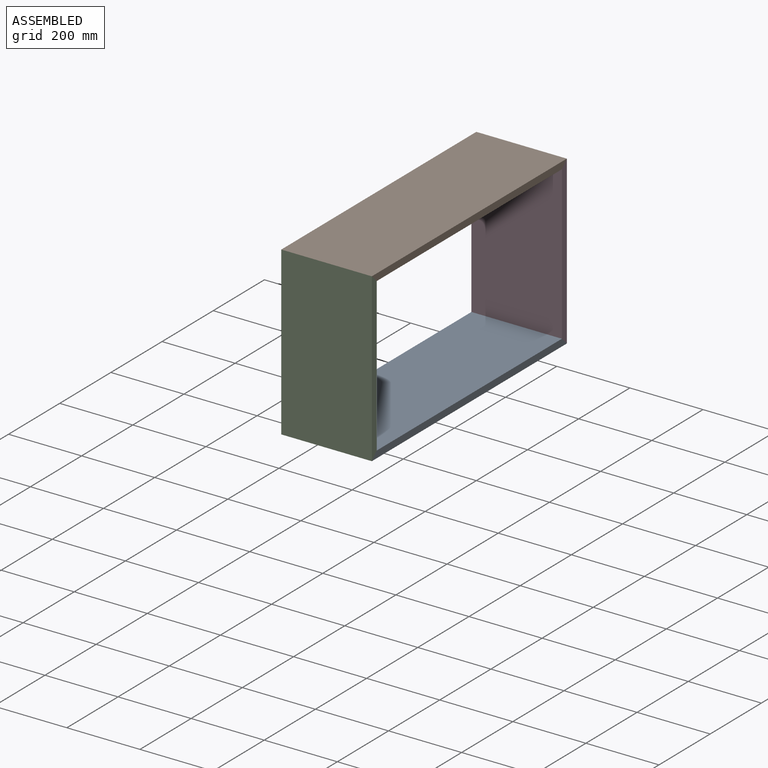
[diagram: assembled view]
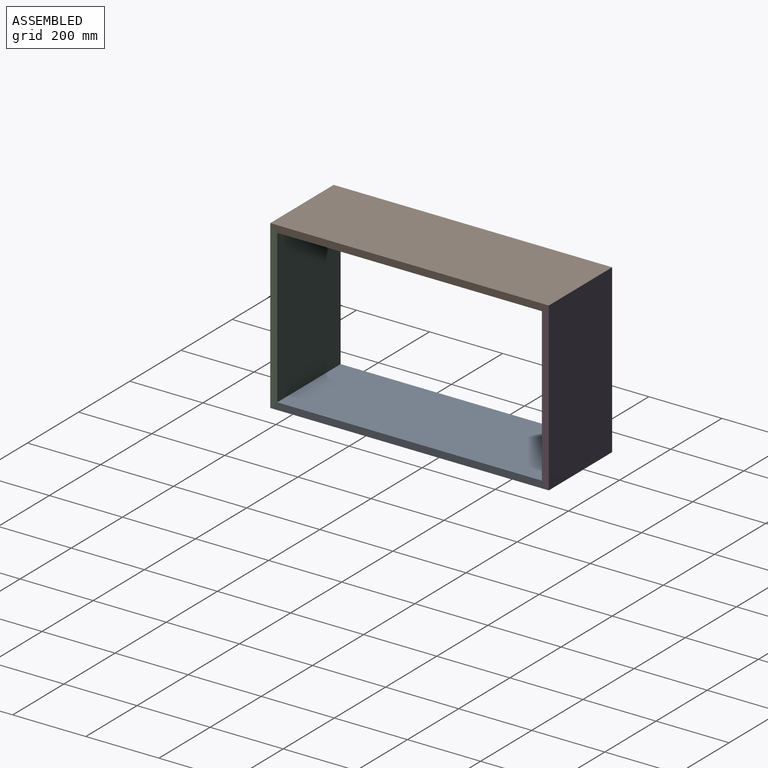
[diagram: assembled view, second angle]
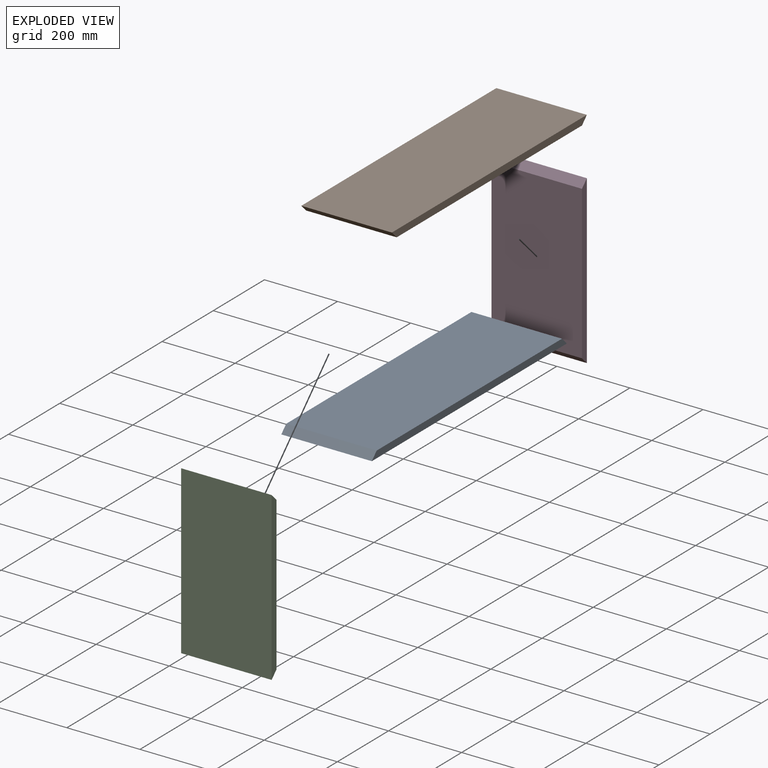
[diagram: exploded view]
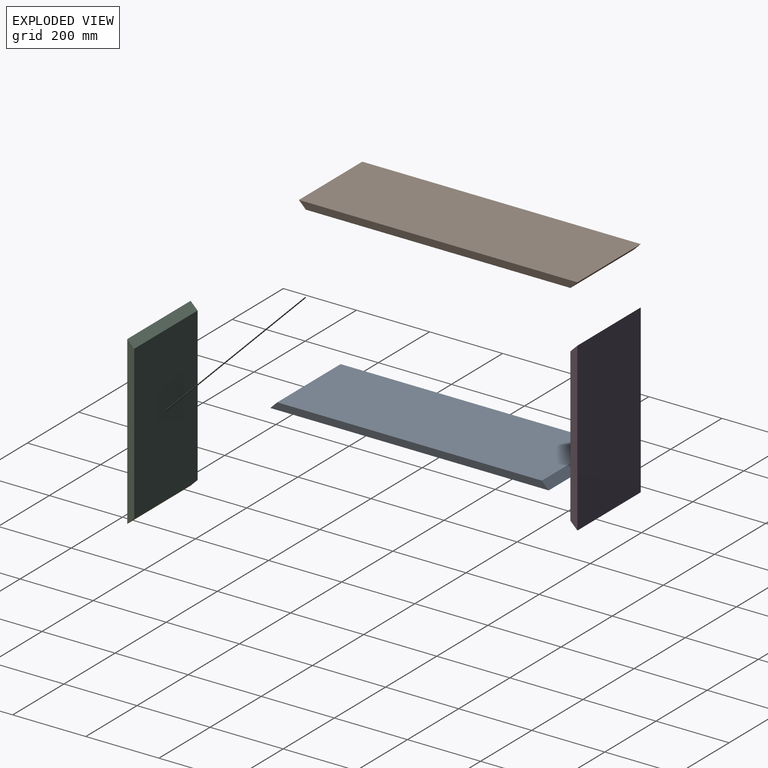
[diagram: exploded view, second angle]
ASSEMBLY  parts=4 mates=3
PART A: 6 faces, bbox 762x247.7x19.1 mm
  f0: plane 762x19.05mm, normal (0,-1,0), area 14153.2mm2, adj f1,f3,f4,f5
  f1: plane 723.9x247.65mm, normal (0,0,-1), area 179273.8mm2, adj f0,f2,f4,f5
  f2: plane 762x19.05mm, normal (0,1,0), area 14153.2mm2, adj f1,f3,f4,f5
  f3: plane 762x247.65mm, normal (0,0,1), area 188709.3mm2, adj f0,f2,f4,f5
  f4: plane 247.65x19.05mm, normal (0.71,0,-0.71), area 6671.9mm2, adj f0,f1,f2,f3
  f5: plane 247.65x19.05mm, normal (-0.71,0,-0.71), area 6671.9mm2, adj f0,f1,f2,f3
PART B: same geometry as A
PART C: 6 faces, bbox 457.2x247.7x19.1 mm
  f0: plane 457.2x19.05mm, normal (0,-1,0), area 8346.8mm2, adj f1,f3,f4,f5
  f1: plane 419.1x247.65mm, normal (0,0,-1), area 103790.1mm2, adj f0,f2,f4,f5
  f2: plane 457.2x19.05mm, normal (0,1,0), area 8346.8mm2, adj f1,f3,f4,f5
  f3: plane 457.2x247.65mm, normal (0,0,1), area 113225.6mm2, adj f0,f2,f4,f5
  f4: plane 247.65x19.05mm, normal (0.71,0,-0.71), area 6671.9mm2, adj f0,f1,f2,f3
  f5: plane 247.65x19.05mm, normal (-0.71,0,-0.71), area 6671.9mm2, adj f0,f1,f2,f3
PART D: same geometry as C
PLACE A rot(axis=(0.71,-0.71,0),180deg) t=(0,0,-438.15)mm
PLACE B rot(axis=(0,0,-1),90deg) t=(247.65,0,-19.05)mm
PLACE C rot(axis=(0.58,-0.58,0.58),120deg) t=(0,-742.95,-457.2)mm
PLACE D rot(axis=(-0.58,0.58,0.58),120deg) t=(0,-19.05,0)mm
MATE fastened D.f5 <-> B.f5  axis (0,-0.71,0.71) through (123.82,-9.53,-9.53)mm
MATE fastened C.f4 <-> B.f4  axis (0,0.71,0.71) through (123.82,-752.48,-9.53)mm
MATE fastened A.f5 <-> D.f4  axis (0,0.71,0.71) through (123.82,-9.52,-447.68)mm
